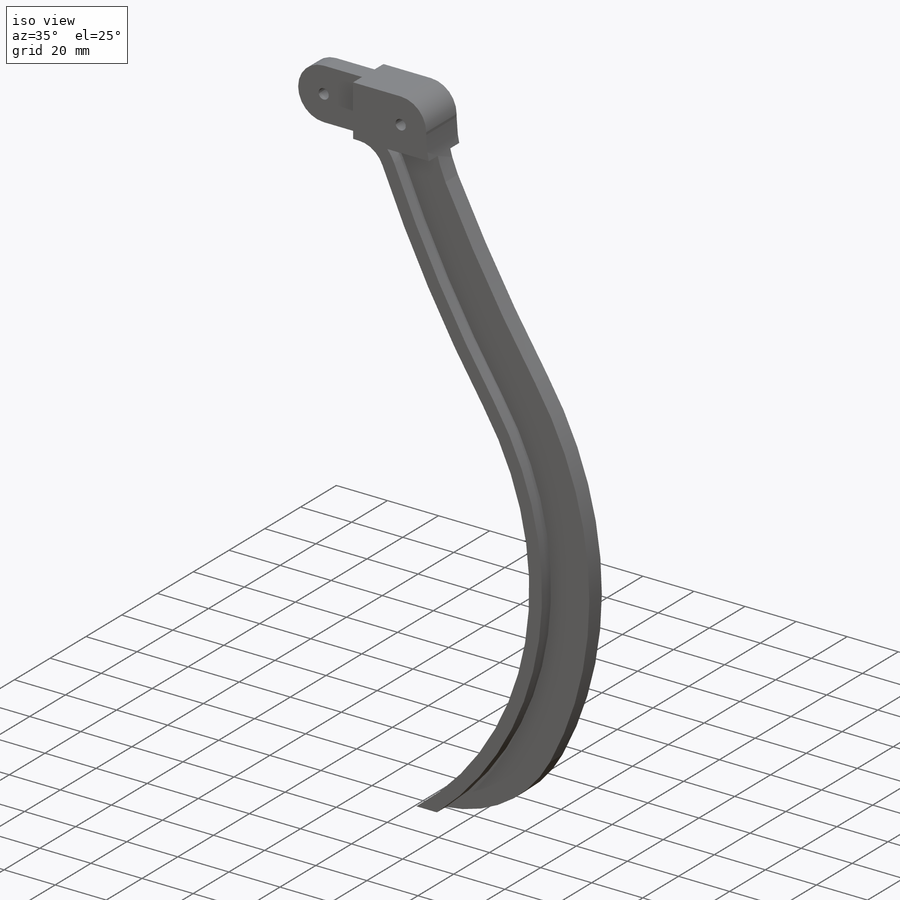
[diagram: iso view]
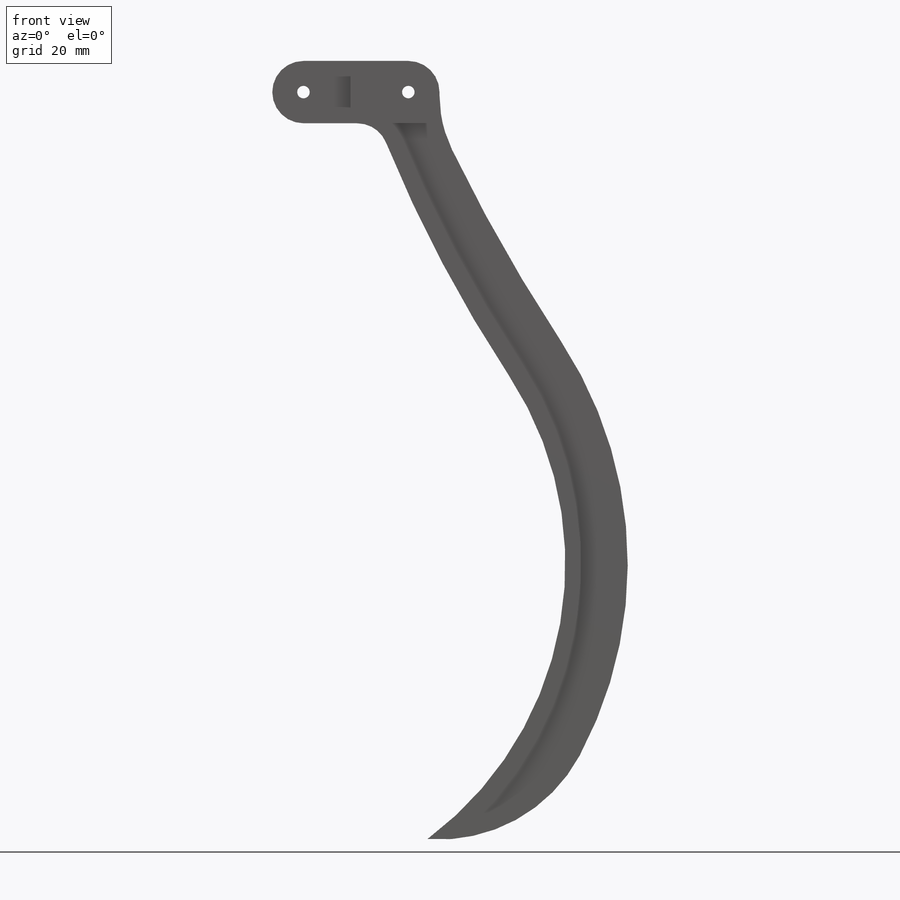
[diagram: front view]
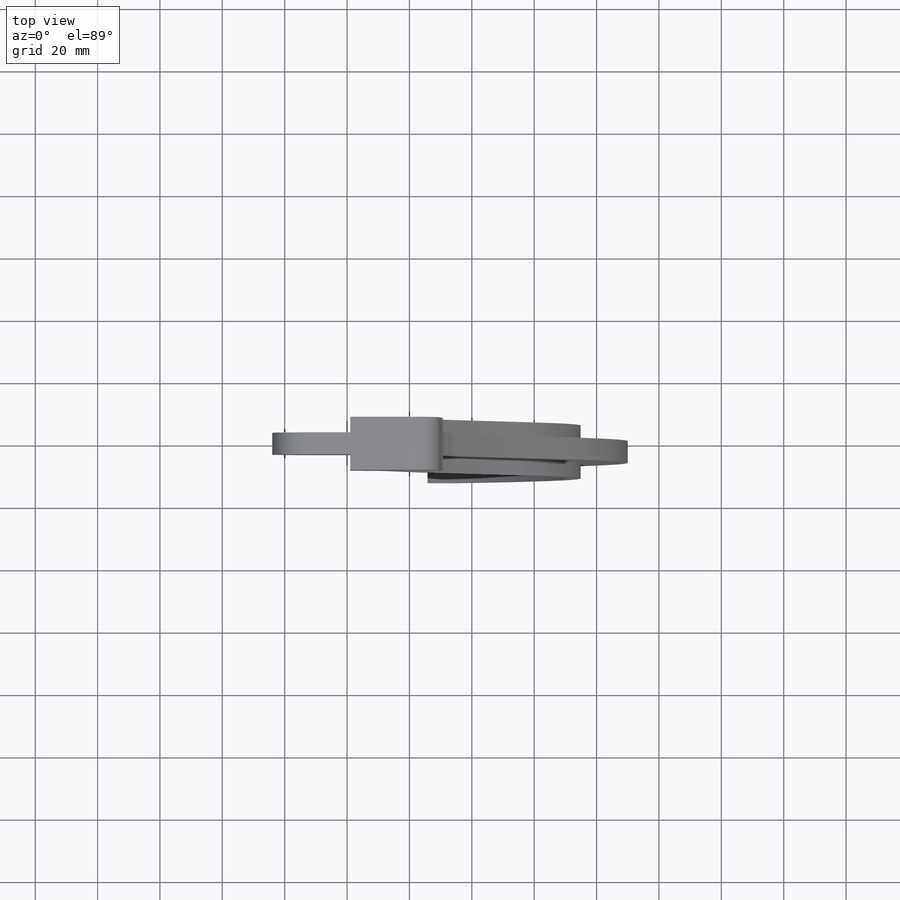
[diagram: top view]
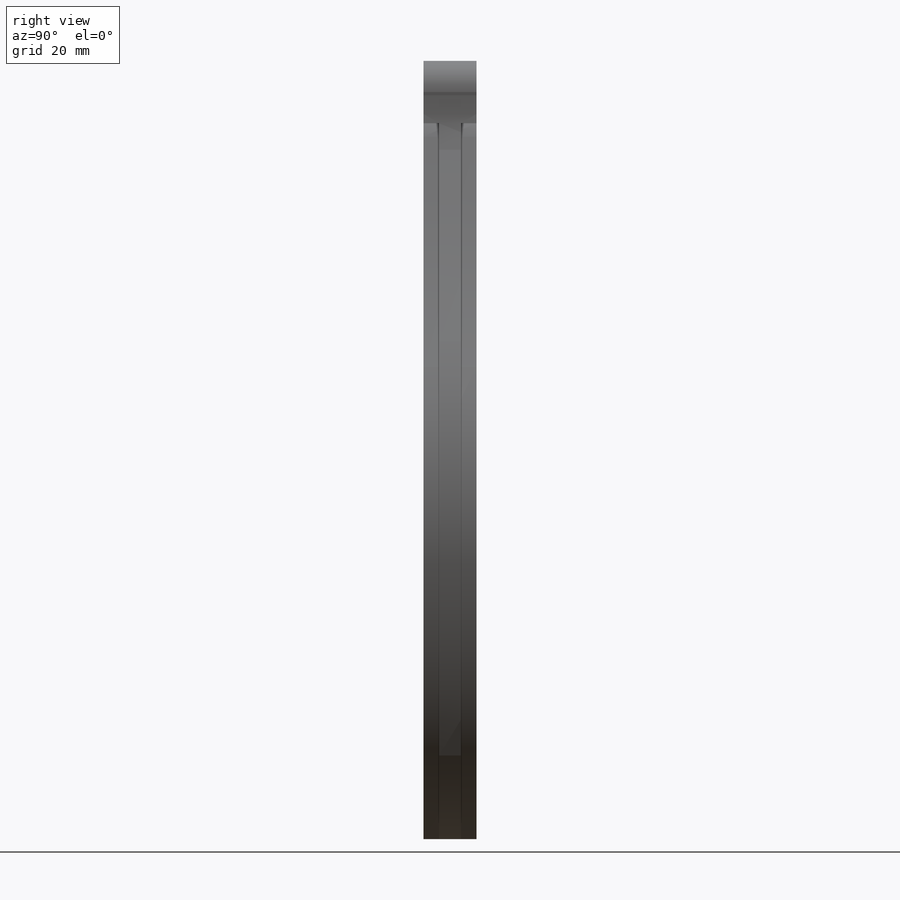
[diagram: right view]
SOLIDWORKS PART (.sldprt)
format: sldprt  version: not decoded by parser v0  size: 375,296 bytes
history: native  units: mm
features: sketch x12, cut_extrude x6, extrude x5, plane x3, material x1 (+9 scaffold rows collapsed)
feature tree (36):
  scaffold x9  (default folders/planes/origin — collapsed)
  material  "Material <sin especificar>"
  plane  "Alzado"
  plane  "Planta"
  plane  "Vista lateral"
  sketch  "Croquis1"  dims[c1.D1=250.0mm c1.D2=~369.070711mm c1.D3=260.0mm c2.D1=10.0mm c2.D2=10.0mm c2.D3=10.0mm c2.D4=4.0mm c3.D2=40.0mm c3.D1=7.5mm c4.D2=7.5mm c4.D3=7.5mm c4.D1=50.0mm c5.D2=20.0mm c5.D5=20.0mm c5.D6=~9.639032mm c6.D5=50.0mm]
  extrude  "Saliente-Extruir1"  Depth=7mm
  sketch  "Croquis2"  dims[D1=5.0mm D2=5.0mm]
  extrude  "Saliente-Extruir2"  Depth=5mm
  sketch  "Croquis3"  dims[D1=5.0mm]
  extrude  "Saliente-Extruir3"  Depth=5mm
  sketch  "Croquis4"
  extrude  "Saliente-Extruir4"  Depth=5mm
  sketch  "Croquis6"
  cut_extrude  "Cortar-Extruir1"  Depth=20mm
  sketch  "Croquis7"
  extrude  "Saliente-Extruir5"  Depth=5mm
  sketch  "Croquis8"
  cut_extrude  "Cortar-Extruir3"  Depth=20mm
  sketch  "Croquis9"  dims[D1=4.0mm]
  cut_extrude  "Cortar-Extruir4"  Depth=20mm
  sketch  "Croquis10"  dims[D1=4.0mm D2=15.0mm]
  cut_extrude  "Cortar-Extruir5"  Depth=5mm
  sketch  "Croquis11"
  sketch  "Croquis12"  dims[D1=4.0mm]
  cut_extrude  "Cortar-Extruir6"  Depth=5mm
  sketch  "Croquis13"
  cut_extrude  "Cortar-Extruir7"  Depth=45mm
decode coverage: 17 of 23 modeling features carry decoded parameters
note: ~ marks probable driven/reference dimensions
note: suppression state not decoded; provenance and decode notes live in map.json
